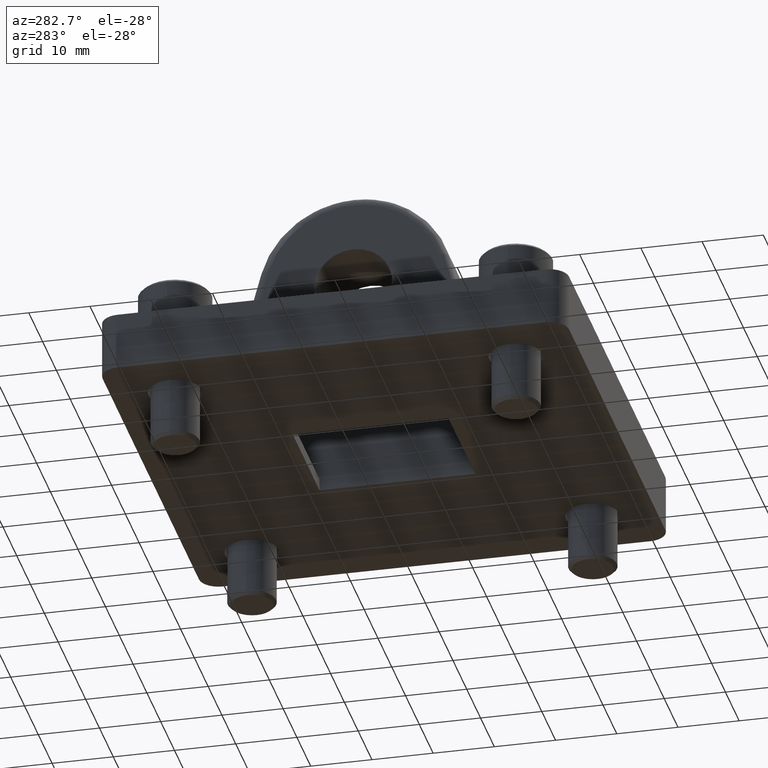
[diagram: clean part render]
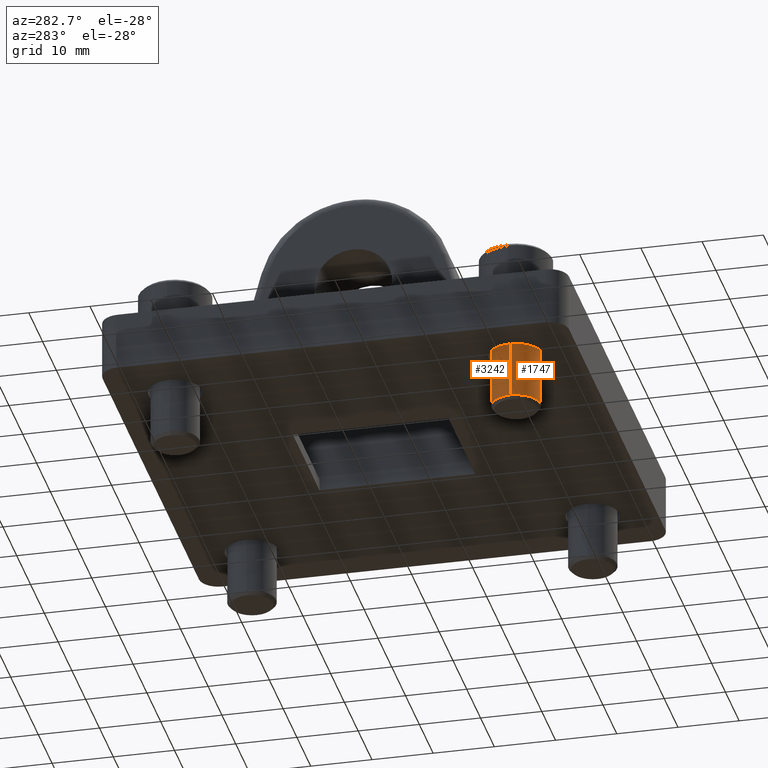
[diagram: same view with one multi-face feature highlighted, each face labeled with its STEP entity id]
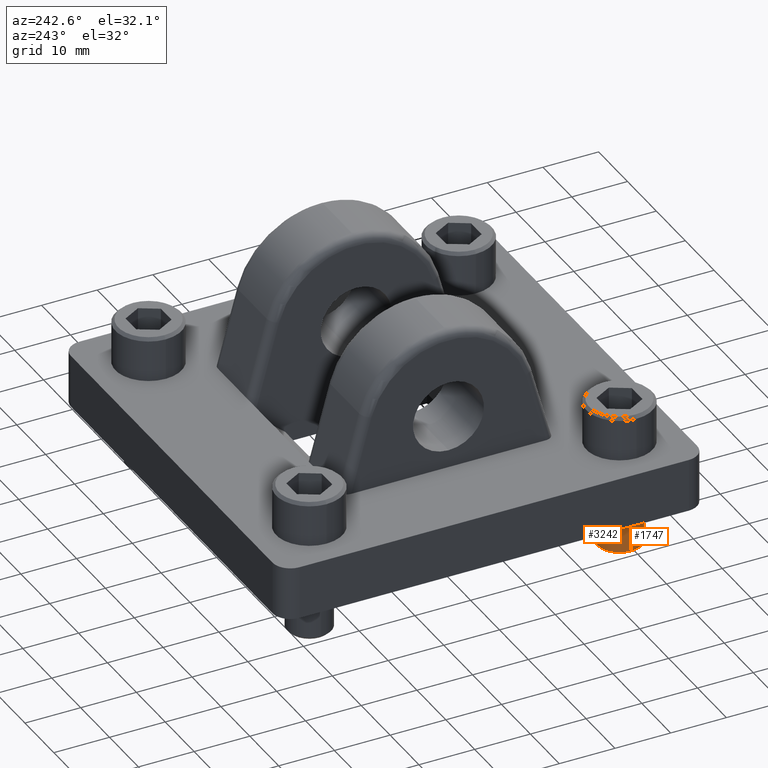
[diagram: same view with one multi-face feature highlighted, each face labeled with its STEP entity id]
A machine part, auxiliary view. The highlighted faces form ONE feature: a constant-radius fillet chain: 2 tangent blend faces with common blend radius 3.9624 mm. The faces share edges in the B-rep.
A second angle (auxiliary view) of the same feature is appended — it is thin or edge-on in the first view.
Their STEP definitions:
[1] entity #3242 (Cylinder):
#148 = CIRCLE ( 'NONE', #1441, 0.1560000000000000553 ) ;
#298 = EDGE_LOOP ( 'NONE', ( #536, #2258, #3368, #675 ) ) ;
#300 = CARTESIAN_POINT ( 'NONE',  ( -1.096000000000000085, -1.096000000000000307, -0.3550000000000009259 ) ) ;
#536 = ORIENTED_EDGE ( 'NONE', *, *, #1516, .T. ) ;
#675 = ORIENTED_EDGE ( 'NONE', *, *, #1654, .F. ) ;
#683 = LINE ( 'NONE', #2852, #2608 ) ;
#731 = AXIS2_PLACEMENT_3D ( 'NONE', #3035, #3584, #1988 ) ;
#811 = CYLINDRICAL_SURFACE ( 'NONE', #731, 0.1560000000000000553 ) ;
#822 = DIRECTION ( 'NONE',  ( 1.000000000000000000, 0.0000000000000000000, 0.0000000000000000000 ) ) ;
#1066 = VERTEX_POINT ( 'NONE', #2145 ) ;
#1073 = DIRECTION ( 'NONE',  ( 0.0000000000000000000, 0.0000000000000000000, 1.000000000000000000 ) ) ;
#1122 = CIRCLE ( 'NONE', #3397, 0.1560000000000000553 ) ;
#1127 = VECTOR ( 'NONE', #1399, 39.37007874015748143 ) ;
#1378 = DIRECTION ( 'NONE',  ( -1.000000000000000000, 0.0000000000000000000, 0.0000000000000000000 ) ) ;
#1399 = DIRECTION ( 'NONE',  ( -0.0000000000000000000, -0.0000000000000000000, 1.000000000000000000 ) ) ;
#1441 = AXIS2_PLACEMENT_3D ( 'NONE', #1664, #1945, #822 ) ;
#1516 = EDGE_CURVE ( 'NONE', #1627, #2631, #1122, .T. ) ;
#1528 = DIRECTION ( 'NONE',  ( -0.0000000000000000000, -0.0000000000000000000, 1.000000000000000000 ) ) ;
#1627 = VERTEX_POINT ( 'NONE', #3075 ) ;
#1654 = EDGE_CURVE ( 'NONE', #1627, #1066, #2748, .T. ) ;
#1664 = CARTESIAN_POINT ( 'NONE',  ( -1.096000000000000085, -1.096000000000000307, 0.3750000000000000555 ) ) ;
#1840 = EDGE_CURVE ( 'NONE', #2631, #3115, #683, .T. ) ;
#1945 = DIRECTION ( 'NONE',  ( -0.0000000000000000000, -0.0000000000000000000, -1.000000000000000000 ) ) ;
#1988 = DIRECTION ( 'NONE',  ( 1.000000000000000000, 0.0000000000000000000, 0.0000000000000000000 ) ) ;
#2065 = EDGE_CURVE ( 'NONE', #3115, #1066, #148, .T. ) ;
#2145 = CARTESIAN_POINT ( 'NONE',  ( -0.9400000000000000577, -1.096000000000000307, 0.3750000000000000555 ) ) ;
#2258 = ORIENTED_EDGE ( 'NONE', *, *, #1840, .T. ) ;
#2608 = VECTOR ( 'NONE', #1528, 39.37007874015748143 ) ;
#2620 = CARTESIAN_POINT ( 'NONE',  ( -1.252000000000000224, -1.096000000000000307, 0.3750000000000000555 ) ) ;
#2631 = VERTEX_POINT ( 'NONE', #3155 ) ;
#2748 = LINE ( 'NONE', #3342, #1127 ) ;
#2852 = CARTESIAN_POINT ( 'NONE',  ( -1.252000000000000224, -1.096000000000000307, -0.3750000000000000555 ) ) ;
#3035 = CARTESIAN_POINT ( 'NONE',  ( -1.096000000000000085, -1.096000000000000307, -0.3750000000000000555 ) ) ;
#3075 = CARTESIAN_POINT ( 'NONE',  ( -0.9400000000000000577, -1.096000000000000307, -0.3550000000000009259 ) ) ;
#3115 = VERTEX_POINT ( 'NONE', #2620 ) ;
#3155 = CARTESIAN_POINT ( 'NONE',  ( -1.252000000000000224, -1.096000000000000307, -0.3550000000000009259 ) ) ;
#3242 = ADVANCED_FACE ( 'NONE', ( #3560 ), #811, .T. ) ;
#3342 = CARTESIAN_POINT ( 'NONE',  ( -0.9400000000000000577, -1.096000000000000307, -0.3750000000000000555 ) ) ;
#3368 = ORIENTED_EDGE ( 'NONE', *, *, #2065, .T. ) ;
#3397 = AXIS2_PLACEMENT_3D ( 'NONE', #300, #1073, #1378 ) ;
#3560 = FACE_OUTER_BOUND ( 'NONE', #298, .T. ) ;
#3584 = DIRECTION ( 'NONE',  ( -0.0000000000000000000, -0.0000000000000000000, 1.000000000000000000 ) ) ;
[2] entity #1747 (Cylinder):
#455 = CARTESIAN_POINT ( 'NONE',  ( -1.096000000000000085, -1.096000000000000307, -0.3550000000000009259 ) ) ;
#520 = ORIENTED_EDGE ( 'NONE', *, *, #1654, .T. ) ;
#638 = ORIENTED_EDGE ( 'NONE', *, *, #3148, .T. ) ;
#683 = LINE ( 'NONE', #2852, #2608 ) ;
#874 = CYLINDRICAL_SURFACE ( 'NONE', #951, 0.1560000000000000553 ) ;
#894 = DIRECTION ( 'NONE',  ( -0.0000000000000000000, -0.0000000000000000000, 1.000000000000000000 ) ) ;
#951 = AXIS2_PLACEMENT_3D ( 'NONE', #3415, #894, #2036 ) ;
#1066 = VERTEX_POINT ( 'NONE', #2145 ) ;
#1127 = VECTOR ( 'NONE', #1399, 39.37007874015748143 ) ;
#1360 = DIRECTION ( 'NONE',  ( -1.000000000000000000, 0.0000000000000000000, 0.0000000000000000000 ) ) ;
#1399 = DIRECTION ( 'NONE',  ( -0.0000000000000000000, -0.0000000000000000000, 1.000000000000000000 ) ) ;
#1511 = ORIENTED_EDGE ( 'NONE', *, *, #2414, .T. ) ;
#1528 = DIRECTION ( 'NONE',  ( -0.0000000000000000000, -0.0000000000000000000, 1.000000000000000000 ) ) ;
#1539 = AXIS2_PLACEMENT_3D ( 'NONE', #455, #2416, #1360 ) ;
#1589 = DIRECTION ( 'NONE',  ( 1.000000000000000000, 0.0000000000000000000, 0.0000000000000000000 ) ) ;
#1627 = VERTEX_POINT ( 'NONE', #3075 ) ;
#1654 = EDGE_CURVE ( 'NONE', #1627, #1066, #2748, .T. ) ;
#1747 = ADVANCED_FACE ( 'NONE', ( #1778 ), #874, .T. ) ;
#1778 = FACE_OUTER_BOUND ( 'NONE', #3237, .T. ) ;
#1840 = EDGE_CURVE ( 'NONE', #2631, #3115, #683, .T. ) ;
#1964 = CIRCLE ( 'NONE', #1539, 0.1560000000000000553 ) ;
#2036 = DIRECTION ( 'NONE',  ( 1.000000000000000000, 0.0000000000000000000, 0.0000000000000000000 ) ) ;
#2044 = AXIS2_PLACEMENT_3D ( 'NONE', #2445, #2164, #1589 ) ;
#2145 = CARTESIAN_POINT ( 'NONE',  ( -0.9400000000000000577, -1.096000000000000307, 0.3750000000000000555 ) ) ;
#2164 = DIRECTION ( 'NONE',  ( -0.0000000000000000000, -0.0000000000000000000, -1.000000000000000000 ) ) ;
#2414 = EDGE_CURVE ( 'NONE', #2631, #1627, #1964, .T. ) ;
#2416 = DIRECTION ( 'NONE',  ( 0.0000000000000000000, 0.0000000000000000000, 1.000000000000000000 ) ) ;
#2445 = CARTESIAN_POINT ( 'NONE',  ( -1.096000000000000085, -1.096000000000000307, 0.3750000000000000555 ) ) ;
#2608 = VECTOR ( 'NONE', #1528, 39.37007874015748143 ) ;
#2620 = CARTESIAN_POINT ( 'NONE',  ( -1.252000000000000224, -1.096000000000000307, 0.3750000000000000555 ) ) ;
#2631 = VERTEX_POINT ( 'NONE', #3155 ) ;
#2743 = ORIENTED_EDGE ( 'NONE', *, *, #1840, .F. ) ;
#2748 = LINE ( 'NONE', #3342, #1127 ) ;
#2852 = CARTESIAN_POINT ( 'NONE',  ( -1.252000000000000224, -1.096000000000000307, -0.3750000000000000555 ) ) ;
#3075 = CARTESIAN_POINT ( 'NONE',  ( -0.9400000000000000577, -1.096000000000000307, -0.3550000000000009259 ) ) ;
#3115 = VERTEX_POINT ( 'NONE', #2620 ) ;
#3148 = EDGE_CURVE ( 'NONE', #1066, #3115, #3523, .T. ) ;
#3155 = CARTESIAN_POINT ( 'NONE',  ( -1.252000000000000224, -1.096000000000000307, -0.3550000000000009259 ) ) ;
#3237 = EDGE_LOOP ( 'NONE', ( #2743, #1511, #520, #638 ) ) ;
#3342 = CARTESIAN_POINT ( 'NONE',  ( -0.9400000000000000577, -1.096000000000000307, -0.3750000000000000555 ) ) ;
#3415 = CARTESIAN_POINT ( 'NONE',  ( -1.096000000000000085, -1.096000000000000307, -0.3750000000000000555 ) ) ;
#3523 = CIRCLE ( 'NONE', #2044, 0.1560000000000000553 ) ;